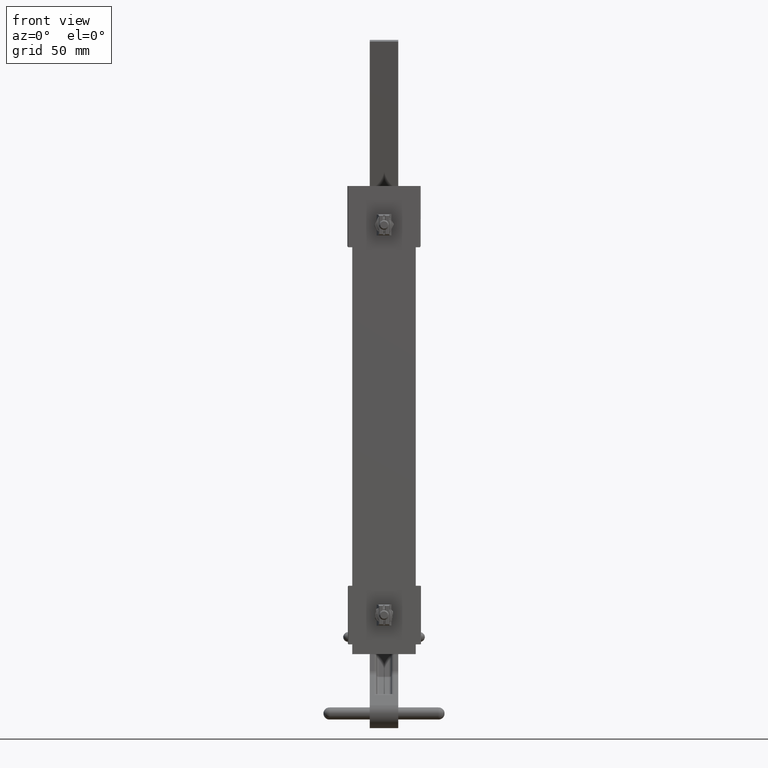
[diagram: clean part render]
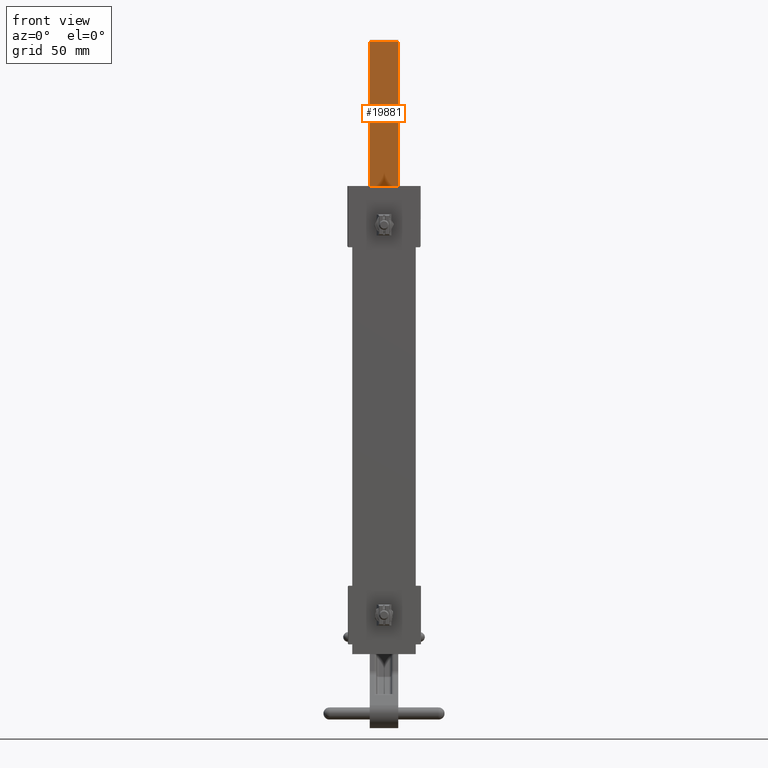
[diagram: same view with one face highlighted and labeled with its STEP entity id]
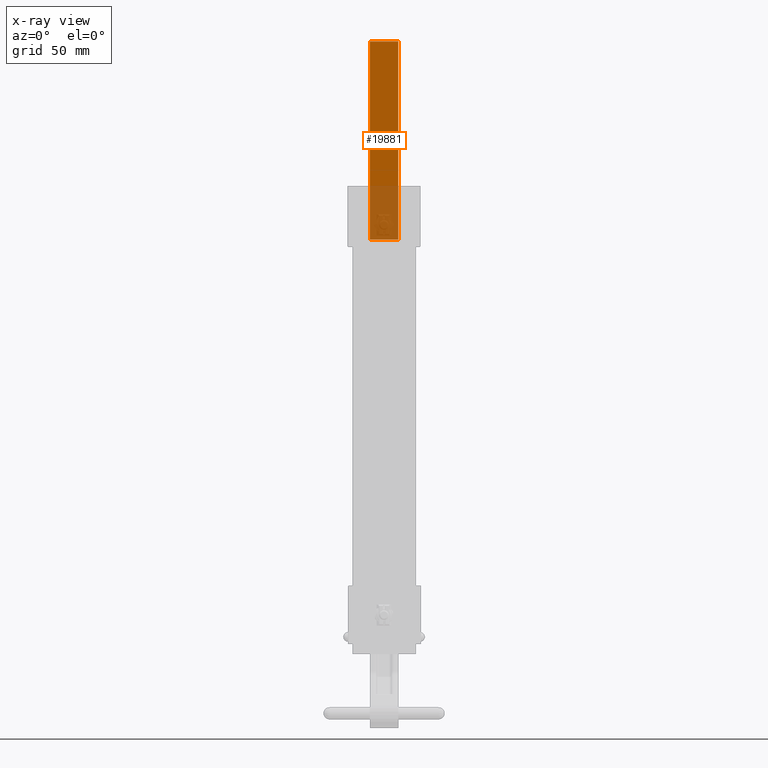
[diagram: x-ray of the same camera — body ghosted, the highlighted face saturated]
A machine part, front view. The second image highlights one B-rep face of the part: STEP entity #19881.
The next image is the same camera in x-ray: the body ghosted, the highlighted face saturated — about 27% of this face is hidden behind the body in this view.
In plain terms, the highlighted planar face has unit normal (-0, 0.9701, 0.2425).
Its self-contained STEP definition (entity closure, byte-faithful):
#1202 = AXIS2_PLACEMENT_3D ( 'NONE', #21934, #35998, #15251 ) ;
#3677 = VERTEX_POINT ( 'NONE', #17239 ) ;
#6224 = FACE_OUTER_BOUND ( 'NONE', #43304, .T. ) ;
#7114 = LINE ( 'NONE', #16708, #41832 ) ;
#11071 = ORIENTED_EDGE ( 'NONE', *, *, #39689, .F. ) ;
#11721 = PLANE ( 'NONE',  #1202 ) ;
#14035 = CARTESIAN_POINT ( 'NONE',  ( -13.58133127964789500, -10.62792709372244300, 0.3649999999999999900 ) ) ;
#15251 = DIRECTION ( 'NONE',  ( -0.6551893981621553800, -0.7554646600178678300, 0.0000000000000000000 ) ) ;
#16586 = CARTESIAN_POINT ( 'NONE',  ( -13.58133127964789500, -10.62792709372244300, 0.3649999999999999900 ) ) ;
#16708 = CARTESIAN_POINT ( 'NONE',  ( -13.58133127964789500, -10.62792709372244300, -0.3649999999999999900 ) ) ;
#17239 = CARTESIAN_POINT ( 'NONE',  ( -13.58133127964789500, -10.62792709372244300, -0.3649999999999999900 ) ) ;
#17502 = DIRECTION ( 'NONE',  ( -0.0000000000000000000, -0.0000000000000000000, -1.000000000000000000 ) ) ;
#19881 = ADVANCED_FACE ( 'NONE', ( #6224 ), #11721, .F. ) ;
#20072 = ORIENTED_EDGE ( 'NONE', *, *, #35770, .T. ) ;
#20215 = DIRECTION ( 'NONE',  ( 0.6551893981621553800, 0.7554646600178678300, 0.0000000000000000000 ) ) ;
#20253 = CARTESIAN_POINT ( 'NONE',  ( -10.15601897395536200, -6.678378453689980200, 0.3649999999999999900 ) ) ;
#21934 = CARTESIAN_POINT ( 'NONE',  ( -13.58133127964789500, -10.62792709372244300, 0.3649999999999999900 ) ) ;
#22157 = VERTEX_POINT ( 'NONE', #44948 ) ;
#24967 = VECTOR ( 'NONE', #27073, 39.37007874015748100 ) ;
#25416 = ORIENTED_EDGE ( 'NONE', *, *, #30347, .F. ) ;
#25539 = CARTESIAN_POINT ( 'NONE',  ( -13.58133127964789500, -10.62792709372244300, 0.3649999999999999900 ) ) ;
#26006 = VERTEX_POINT ( 'NONE', #25539 ) ;
#26686 = CARTESIAN_POINT ( 'NONE',  ( -10.15601897395536200, -6.678378453689980200, 0.3649999999999999900 ) ) ;
#27073 = DIRECTION ( 'NONE',  ( -0.0000000000000000000, -0.0000000000000000000, -1.000000000000000000 ) ) ;
#27961 = EDGE_CURVE ( 'NONE', #3677, #22157, #7114, .T. ) ;
#28833 = VECTOR ( 'NONE', #30521, 39.37007874015748100 ) ;
#29407 = VECTOR ( 'NONE', #17502, 39.37007874015748100 ) ;
#30347 = EDGE_CURVE ( 'NONE', #44409, #22157, #41211, .T. ) ;
#30521 = DIRECTION ( 'NONE',  ( 0.6551893981621553800, 0.7554646600178678300, 0.0000000000000000000 ) ) ;
#35770 = EDGE_CURVE ( 'NONE', #26006, #3677, #39722, .T. ) ;
#35879 = LINE ( 'NONE', #16586, #28833 ) ;
#35998 = DIRECTION ( 'NONE',  ( -0.7554646600178678300, 0.6551893981621553800, 0.0000000000000000000 ) ) ;
#39689 = EDGE_CURVE ( 'NONE', #26006, #44409, #35879, .T. ) ;
#39722 = LINE ( 'NONE', #14035, #29407 ) ;
#40736 = ORIENTED_EDGE ( 'NONE', *, *, #27961, .T. ) ;
#41211 = LINE ( 'NONE', #20253, #24967 ) ;
#41832 = VECTOR ( 'NONE', #20215, 39.37007874015748100 ) ;
#43304 = EDGE_LOOP ( 'NONE', ( #40736, #25416, #11071, #20072 ) ) ;
#44409 = VERTEX_POINT ( 'NONE', #26686 ) ;
#44948 = CARTESIAN_POINT ( 'NONE',  ( -10.15601897395536200, -6.678378453689980200, -0.3649999999999999900 ) ) ;